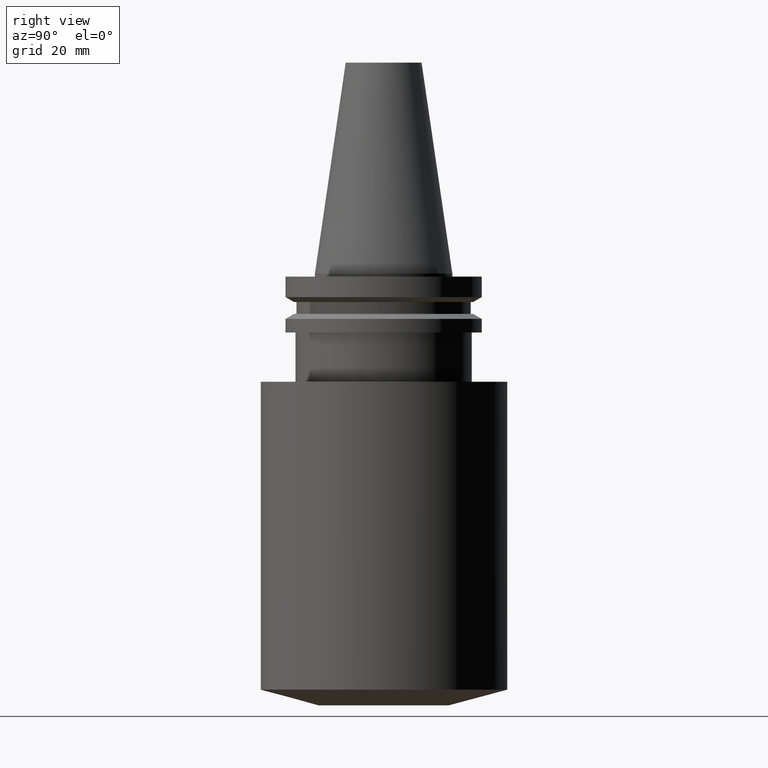
[diagram: clean part render]
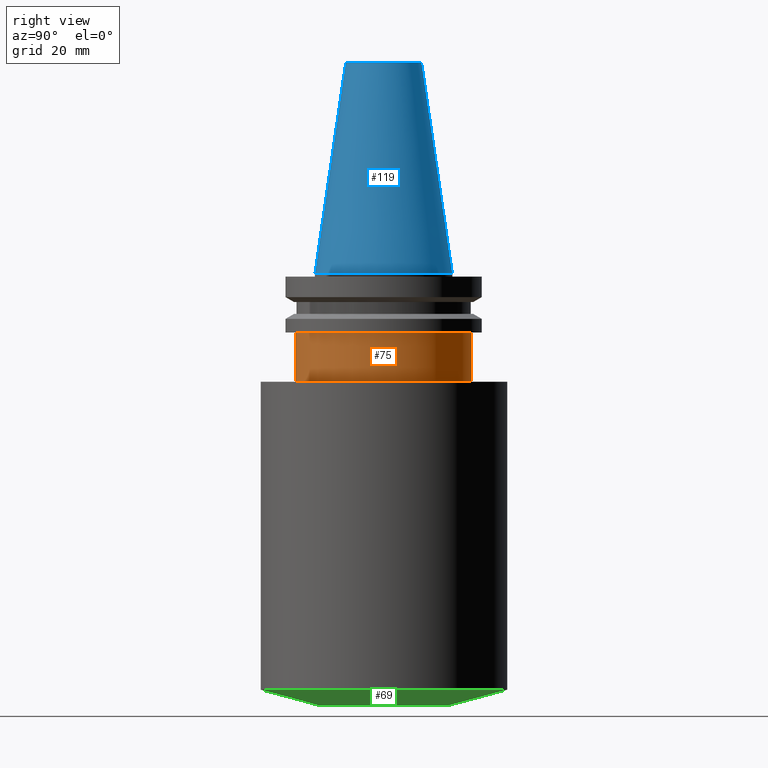
[diagram: same view with three faces highlighted in distinct colors, each labeled with its STEP entity id]
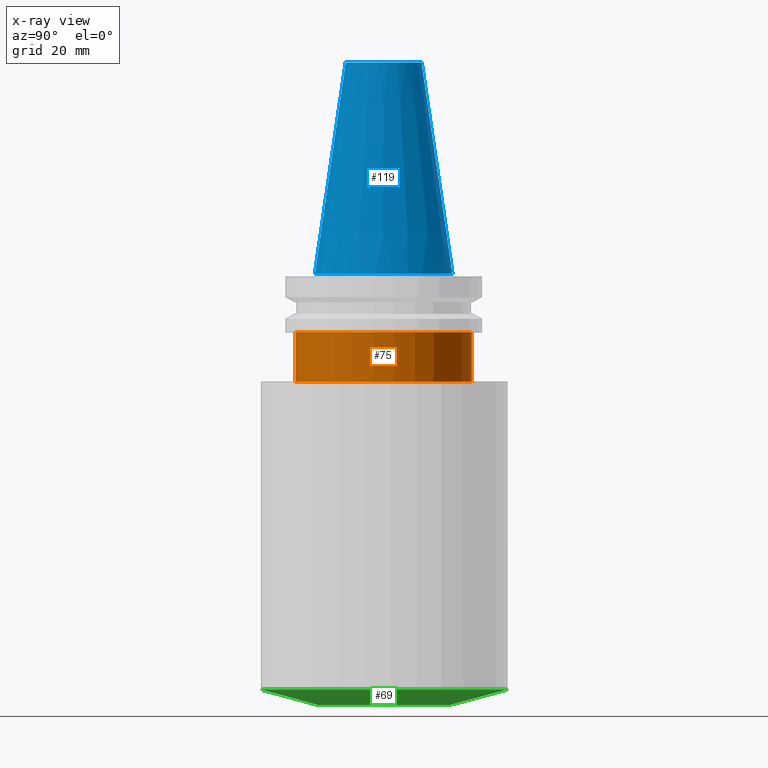
[diagram: x-ray of the same camera — body ghosted, the three highlighted faces saturated]
A machine part, right view with three faces highlighted in distinct colors.
The next image is the same camera in x-ray (body ghosted, the three faces saturated) — at least one of them is partly hidden behind the body in this view.
Their STEP definitions:

[orange] entity #75 — the highlighted cylindrical surface (bore or boss wall) has radius 28.5 mm, axis along (0, 0, -1).
#75=ADVANCED_FACE('Unnamed[1]',(#187,#188),#189,.T.);
#81=EDGE_CURVE('Unnamed[1]',#197,#197,#198,.T.);
#108=EDGE_CURVE('Unnamed[1]',#237,#237,#238,.T.);
#187=FACE_BOUND('',#334,.T.);
#188=FACE_BOUND('',#335,.T.);
#189=CYLINDRICAL_SURFACE('',#336,28.5000000000037);
#197=VERTEX_POINT('',#347);
#198=CIRCLE('',#348,28.5000000000041);
#237=VERTEX_POINT('',#397);
#238=CIRCLE('',#398,28.5000000000033);
#334=EDGE_LOOP('',(#498));
#335=EDGE_LOOP('',(#499));
#336=AXIS2_PLACEMENT_3D('',#500,#501,#502);
#347=CARTESIAN_POINT('',(1.16647607618785E-015,28.5000000000041,-19.05));
#348=AXIS2_PLACEMENT_3D('',#509,#510,#511);
#397=CARTESIAN_POINT('',(2.14313189850795E-015,28.5000000000033,-35.0000000000013));
#398=AXIS2_PLACEMENT_3D('',#551,#552,#553);
#498=ORIENTED_EDGE('',*,*,#108,.F.);
#499=ORIENTED_EDGE('',*,*,#81,.T.);
#500=CARTESIAN_POINT('',(1.6548039873479E-015,3.3096079746958E-015,-27.0250000000007));
#501=DIRECTION('',(6.12323399573677E-017,1.22464679914735E-016,-1.0));
#502=DIRECTION('',(-1.23259516440783E-032,1.0,1.22464679914735E-016));
#509=CARTESIAN_POINT('',(1.16647607618785E-015,2.33295215237571E-015,-19.05));
#510=DIRECTION('',(6.12323399573677E-017,1.22464679914735E-016,-1.0));
#511=DIRECTION('',(-1.23259516440783E-032,1.0,1.22464679914735E-016));
#551=CARTESIAN_POINT('',(2.14313189850795E-015,4.2862637970159E-015,-35.0000000000013));
#552=DIRECTION('',(6.12323399573677E-017,1.22464679914735E-016,-1.0));
#553=DIRECTION('',(-1.23259516440783E-032,1.0,1.22464679914735E-016));

[blue] entity #119 — the highlighted conical surface has half-angle 8.297 deg.
#93=EDGE_CURVE('Unnamed[1]',#215,#215,#216,.T.);
#119=ADVANCED_FACE('Unnamed[1]',(#254,#255),#256,.T.);
#137=EDGE_CURVE('Unnamed[1]',#283,#283,#284,.T.);
#215=VERTEX_POINT('',#370);
#216=CIRCLE('',#371,12.2718750014769);
#254=FACE_BOUND('',#418,.T.);
#255=FACE_BOUND('',#419,.T.);
#256=CONICAL_SURFACE('',#420,17.2484375007384,0.144812498217751);
#283=VERTEX_POINT('',#454);
#284=CIRCLE('',#455,22.225);
#370=CARTESIAN_POINT('',(-4.17910720209034E-015,12.2718750014769,68.25));
#371=AXIS2_PLACEMENT_3D('',#529,#530,#531);
#418=EDGE_LOOP('',(#570));
#419=EDGE_LOOP('',(#571));
#420=AXIS2_PLACEMENT_3D('',#572,#573,#574);
#454=CARTESIAN_POINT('',(-2.73944275289641E-031,22.225,2.72177751110499E-015));
#455=AXIS2_PLACEMENT_3D('',#604,#605,#606);
#529=CARTESIAN_POINT('',(-4.17910720209034E-015,-8.35821440418068E-015,68.25));
#530=DIRECTION('',(6.12323399573677E-017,1.22464679914735E-016,-1.0));
#531=DIRECTION('',(-1.23259516440783E-032,1.0,1.22464679914735E-016));
#570=ORIENTED_EDGE('',*,*,#137,.F.);
#571=ORIENTED_EDGE('',*,*,#93,.T.);
#572=CARTESIAN_POINT('',(-2.08955360104517E-015,-4.17910720209034E-015,34.125));
#573=DIRECTION('',(6.12323399573677E-017,1.22464679914735E-016,-1.0));
#574=DIRECTION('',(-1.23259516440783E-032,1.0,1.22464679914735E-016));
#604=CARTESIAN_POINT('',(0.0,0.0,0.0));
#605=DIRECTION('',(6.12323399573677E-017,1.22464679914735E-016,-1.0));
#606=DIRECTION('',(-1.23259516440783E-032,1.0,1.22464679914735E-016));

[green] entity #69 — the highlighted conical surface has half-angle 75 deg.
#69=ADVANCED_FACE('Unnamed[1]',(#177,#178),#179,.T.);
#104=EDGE_CURVE('Unnamed[1]',#231,#231,#232,.T.);
#126=EDGE_CURVE('Unnamed[1]',#266,#266,#267,.T.);
#177=FACE_BOUND('',#322,.T.);
#178=FACE_BOUND('',#323,.T.);
#179=CONICAL_SURFACE('',#324,30.5000000000034,1.30899693899574);
#231=VERTEX_POINT('',#389);
#232=CIRCLE('',#390,40.0000000000015);
#266=VERTEX_POINT('',#433);
#267=CIRCLE('',#434,21.0000000000052);
#322=EDGE_LOOP('',(#486));
#323=EDGE_LOOP('',(#487));
#324=AXIS2_PLACEMENT_3D('',#488,#489,#490);
#389=CARTESIAN_POINT('',(8.24242192724159E-015,40.0000000000016,-134.608965343808));
#390=AXIS2_PLACEMENT_3D('',#545,#546,#547);
#433=CARTESIAN_POINT('',(8.55415789204418E-015,21.0000000000052,-139.699999999999));
#434=AXIS2_PLACEMENT_3D('',#584,#585,#586);
#486=ORIENTED_EDGE('',*,*,#126,.F.);
#487=ORIENTED_EDGE('',*,*,#104,.T.);
#488=CARTESIAN_POINT('',(8.39828990964289E-015,1.67965798192858E-014,-137.154482671904));
#489=DIRECTION('',(-6.12323399573677E-017,-1.22464679914735E-016,1.0));
#490=DIRECTION('',(-1.23259516440783E-032,1.0,1.22464679914735E-016));
#545=CARTESIAN_POINT('',(8.24242192724159E-015,1.64848438544832E-014,-134.608965343808));
#546=DIRECTION('',(6.12323399573676E-017,1.22464679914735E-016,-1.0));
#547=DIRECTION('',(-1.23259516440783E-032,1.0,1.22464679914735E-016));
#584=CARTESIAN_POINT('',(8.55415789204418E-015,1.71083157840884E-014,-139.699999999999));
#585=DIRECTION('',(6.12323399573677E-017,1.22464679914735E-016,-1.0));
#586=DIRECTION('',(-1.23259516440783E-032,1.0,1.22464679914735E-016));